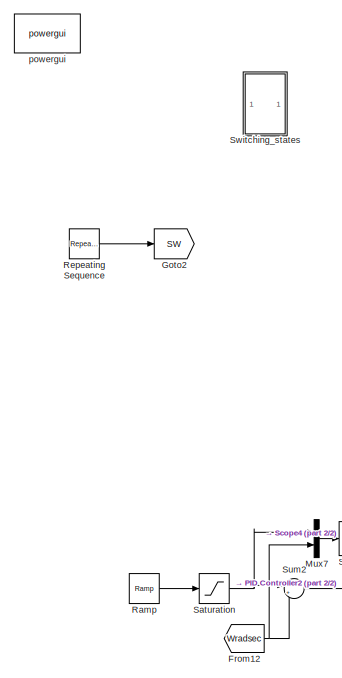
[diagram: root canvas - part 1/2, left side, full height]
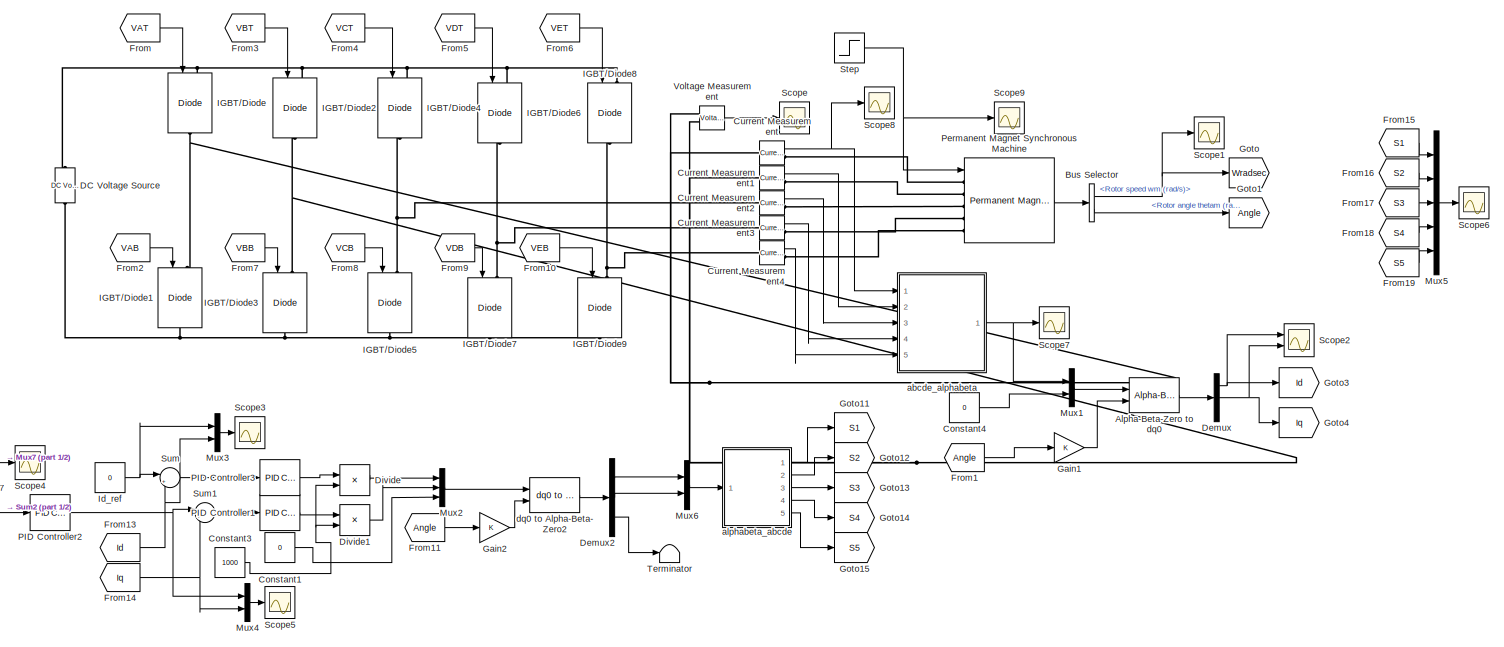
[diagram: root canvas - part 2/2, most of the canvas]
MODEL slx_a9681ad909bc
KIND model
CONFIG AbsTol = auto
CONFIG FixedStep = 0.0000001
CONFIG MaxStep = 0.000001
CONFIG MinStep = 0.0000001
CONFIG RelTol = 1e-3
CONFIG SampleTimeConstraint = Unconstrained
CONFIG Solver = ode3
CONFIG SolverMode = Auto
CONFIG SolverName = ode3
CONFIG StartTime = 0.0
CONFIG StopTime = 0.2
BLOCK [Reference] Alpha-Beta-Zero to dq0  REF=powerlib_meascontrol/Transformations/Alpha-Beta-Zero
to dq0
  Alignment = Aligned with phase A axis
  Ports = [2, 1]
  SourceBlock = powerlib_meascontrol/Transformations/Alpha-Beta-Zero\nto dq0
  SourceType = Alpha-Beta-Zero to dq0 Transformation
BLOCK [BusSelector] Bus Selector
  OutputSignals = Rotor speed wm (rad/s),Rotor angle thetam (rad)
  Ports = [1, 2]
BLOCK [Constant] Constant1
  Value = 0
BLOCK [Constant] Constant3
  Value = 1000
BLOCK [Constant] Constant4
  Value = 0
BLOCK [Reference] Current Measurement  REF=powerlib/Measurements/Current Measurement
  OutputType = Complex
  PSBequivalent = 0
  PhasorSimulation = off
  Ports = [0, 1, 0, 0, 0, 1, 1]
  SourceBlock = powerlib/Measurements/Current Measurement
  SourceType = Current Measurement
  UserDataPersistent = on
BLOCK [Reference] Current Measurement1  REF=powerlib/Measurements/Current Measurement
  OutputType = Complex
  PSBequivalent = 0
  PhasorSimulation = off
  Ports = [0, 1, 0, 0, 0, 1, 1]
  SourceBlock = powerlib/Measurements/Current Measurement
  SourceType = Current Measurement
  UserDataPersistent = on
BLOCK [Reference] Current Measurement2  REF=powerlib/Measurements/Current Measurement
  OutputType = Complex
  PSBequivalent = 0
  PhasorSimulation = off
  Ports = [0, 1, 0, 0, 0, 1, 1]
  SourceBlock = powerlib/Measurements/Current Measurement
  SourceType = Current Measurement
  UserDataPersistent = on
BLOCK [Reference] Current Measurement3  REF=powerlib/Measurements/Current Measurement
  OutputType = Complex
  PSBequivalent = 0
  PhasorSimulation = off
  Ports = [0, 1, 0, 0, 0, 1, 1]
  SourceBlock = powerlib/Measurements/Current Measurement
  SourceType = Current Measurement
  UserDataPersistent = on
BLOCK [Reference] Current Measurement4  REF=powerlib/Measurements/Current Measurement
  OutputType = Complex
  PSBequivalent = 0
  PhasorSimulation = off
  Ports = [0, 1, 0, 0, 0, 1, 1]
  SourceBlock = powerlib/Measurements/Current Measurement
  SourceType = Current Measurement
  UserDataPersistent = on
BLOCK [Reference] DC Voltage Source  REF=powerlib/Electrical
Sources/DC Voltage Source
  Amplitude = 1000
  Measurements = None
  Ports = [0, 0, 0, 0, 0, 1, 1]
  SourceBlock = powerlib/Electrical\nSources/DC Voltage Source
  SourceType = DC Voltage Source
BLOCK [Demux] Demux
  DisplayOption = bar
  Outputs = 3
  Ports = [1, 3]
BLOCK [Demux] Demux2
  DisplayOption = bar
  Outputs = 3
  Ports = [1, 3]
BLOCK [Product] Divide
  InputSameDT = off
  Inputs = */
  OutDataTypeStr = Inherit: Inherit via internal rule
  Ports = [2, 1]
  RndMeth = Floor
  SaturateOnIntegerOverflow = off
BLOCK [Product] Divide1
  InputSameDT = off
  Inputs = */
  OutDataTypeStr = Inherit: Inherit via internal rule
  Ports = [2, 1]
  RndMeth = Floor
  SaturateOnIntegerOverflow = off
BLOCK [From] From
  GotoTag = VAT
  TagVisibility = global
BLOCK [From] From1
  GotoTag = Angle
BLOCK [From] From10
  GotoTag = VEB
  TagVisibility = global
BLOCK [From] From11
  GotoTag = Angle
BLOCK [From] From12
  GotoTag = Wradsec
  TagVisibility = global
BLOCK [From] From13
  GotoTag = Id
BLOCK [From] From14
  GotoTag = Iq
BLOCK [From] From15
  GotoTag = S1
  TagVisibility = global
BLOCK [From] From16
  GotoTag = S2
  TagVisibility = global
BLOCK [From] From17
  GotoTag = S3
  TagVisibility = global
BLOCK [From] From18
  GotoTag = S4
  TagVisibility = global
BLOCK [From] From19
  GotoTag = S5
  TagVisibility = global
BLOCK [From] From2
  GotoTag = VAB
  TagVisibility = global
BLOCK [From] From3
  GotoTag = VBT
  TagVisibility = global
BLOCK [From] From4
  GotoTag = VCT
  TagVisibility = global
BLOCK [From] From5
  GotoTag = VDT
  TagVisibility = global
BLOCK [From] From6
  GotoTag = VET
  TagVisibility = global
BLOCK [From] From7
  GotoTag = VBB
  TagVisibility = global
BLOCK [From] From8
  GotoTag = VCB
  TagVisibility = global
BLOCK [From] From9
  GotoTag = VDB
  TagVisibility = global
BLOCK [Gain] Gain1
  OutDataTypeStr = Inherit: Inherit via internal rule
  ParamDataTypeStr = Inherit: Inherit via internal rule
  SaturateOnIntegerOverflow = off
BLOCK [Gain] Gain2
  OutDataTypeStr = Inherit: Inherit via internal rule
  ParamDataTypeStr = Inherit: Inherit via internal rule
  SaturateOnIntegerOverflow = off
BLOCK [Goto] Goto
  GotoTag = Wradsec
  TagVisibility = global
BLOCK [Goto] Goto1
  GotoTag = Angle
BLOCK [Goto] Goto11
  GotoTag = S1
  TagVisibility = global
BLOCK [Goto] Goto12
  GotoTag = S2
  TagVisibility = global
BLOCK [Goto] Goto13
  GotoTag = S3
  TagVisibility = global
BLOCK [Goto] Goto14
  GotoTag = S4
  TagVisibility = global
BLOCK [Goto] Goto15
  GotoTag = S5
  TagVisibility = global
BLOCK [Goto] Goto2
  GotoTag = SW
  TagVisibility = global
BLOCK [Goto] Goto3
  GotoTag = Id
BLOCK [Goto] Goto4
  GotoTag = Iq
BLOCK [Reference] IGBT//Diode  REF=powerlib/Power
Electronics/IGBT//Diode
  Cs = inf
  Measurements = off
  Ports = [1, 0, 0, 0, 0, 1, 1]
  Ron = 1e-3
  Rs = 1e5
  SourceBlock = powerlib/Power\nElectronics/IGBT//Diode
  SourceType = IGBT/Diode
BLOCK [Reference] IGBT//Diode1  REF=powerlib/Power
Electronics/IGBT//Diode
  Cs = inf
  Measurements = off
  Ports = [1, 0, 0, 0, 0, 1, 1]
  Ron = 1e-3
  Rs = 1e5
  SourceBlock = powerlib/Power\nElectronics/IGBT//Diode
  SourceType = IGBT/Diode
BLOCK [Reference] IGBT//Diode2  REF=powerlib/Power
Electronics/IGBT//Diode
  Cs = inf
  Measurements = off
  Ports = [1, 0, 0, 0, 0, 1, 1]
  Ron = 1e-3
  Rs = 1e5
  SourceBlock = powerlib/Power\nElectronics/IGBT//Diode
  SourceType = IGBT/Diode
BLOCK [Reference] IGBT//Diode3  REF=powerlib/Power
Electronics/IGBT//Diode
  Cs = inf
  Measurements = off
  Ports = [1, 0, 0, 0, 0, 1, 1]
  Ron = 1e-3
  Rs = 1e5
  SourceBlock = powerlib/Power\nElectronics/IGBT//Diode
  SourceType = IGBT/Diode
BLOCK [Reference] IGBT//Diode4  REF=powerlib/Power
Electronics/IGBT//Diode
  Cs = inf
  Measurements = off
  Ports = [1, 0, 0, 0, 0, 1, 1]
  Ron = 1e-3
  Rs = 1e5
  SourceBlock = powerlib/Power\nElectronics/IGBT//Diode
  SourceType = IGBT/Diode
BLOCK [Reference] IGBT//Diode5  REF=powerlib/Power
Electronics/IGBT//Diode
  Cs = inf
  Measurements = off
  Ports = [1, 0, 0, 0, 0, 1, 1]
  Ron = 1e-3
  Rs = 1e5
  SourceBlock = powerlib/Power\nElectronics/IGBT//Diode
  SourceType = IGBT/Diode
BLOCK [Reference] IGBT//Diode6  REF=powerlib/Power
Electronics/IGBT//Diode
  Cs = inf
  Measurements = off
  Ports = [1, 0, 0, 0, 0, 1, 1]
  Ron = 1e-3
  Rs = 1e5
  SourceBlock = powerlib/Power\nElectronics/IGBT//Diode
  SourceType = IGBT/Diode
BLOCK [Reference] IGBT//Diode7  REF=powerlib/Power
Electronics/IGBT//Diode
  Cs = inf
  Measurements = off
  Ports = [1, 0, 0, 0, 0, 1, 1]
  Ron = 1e-3
  Rs = 1e5
  SourceBlock = powerlib/Power\nElectronics/IGBT//Diode
  SourceType = IGBT/Diode
BLOCK [Reference] IGBT//Diode8  REF=powerlib/Power
Electronics/IGBT//Diode
  Cs = inf
  Measurements = off
  Ports = [1, 0, 0, 0, 0, 1, 1]
  Ron = 1e-3
  Rs = 1e5
  SourceBlock = powerlib/Power\nElectronics/IGBT//Diode
  SourceType = IGBT/Diode
BLOCK [Reference] IGBT//Diode9  REF=powerlib/Power
Electronics/IGBT//Diode
  Cs = inf
  Measurements = off
  Ports = [1, 0, 0, 0, 0, 1, 1]
  Ron = 1e-3
  Rs = 1e5
  SourceBlock = powerlib/Power\nElectronics/IGBT//Diode
  SourceType = IGBT/Diode
BLOCK [Constant] Id_ref
  Value = 0
BLOCK [Mux] Mux1
  DisplayOption = bar
  Inputs = 2
  Ports = [2, 1]
BLOCK [Mux] Mux2
  DisplayOption = bar
  Inputs = 3
  Ports = [3, 1]
BLOCK [Mux] Mux3
  DisplayOption = bar
  Inputs = 2
  Ports = [2, 1]
BLOCK [Mux] Mux4
  DisplayOption = bar
  Inputs = 2
  Ports = [2, 1]
BLOCK [Mux] Mux5
  DisplayOption = bar
  Inputs = 5
  Ports = [5, 1]
BLOCK [Mux] Mux6
  DisplayOption = bar
  Inputs = 2
  Ports = [2, 1]
BLOCK [Mux] Mux7
  DisplayOption = bar
  Inputs = 2
  Ports = [2, 1]
BLOCK [Reference] PID Controller1  REF=simulink/Continuous/PID Controller
  AntiWindupMode = none
  Controller = PI
  ControllerParametersSource = internal
  D = 0
  DGainOutDataTypeStr = Inherit: Inherit via internal rule
  DOutDataTypeStr = Inherit: Inherit via internal rule
  DOutMax = []
  DOutMin = []
  DParamDataTypeStr = Inherit: Inherit via internal rule
  DParamMax = []
  DParamMin = []
  DProdOutDataTypeStr = Inherit: Inherit via internal rule
  DifferentiatorICPrevScaledInput = 0
  DifferentiatorOutDataTypeStr = Inherit: Inherit via internal rule
  DifferentiatorOutMax = []
  DifferentiatorOutMin = []
  ExternalReset = none
  FilterContinuousStateAttributes = ''
  FilterMethod = Forward Euler
  FilterOutDataTypeStr = Inherit: Inherit via internal rule
  FilterOutMax = []
  FilterOutMin = []
  FilterRTWStateStorageClass = Auto
  FilterStateMustResolveToSignalObject = off
  Form = Parallel
  I = 15000
  IGainOutDataTypeStr = Inherit: Inherit via internal rule
  IOutDataTypeStr = Inherit: Inherit via internal rule
  IOutMax = []
  IOutMin = []
  IParamDataTypeStr = Inherit: Inherit via internal rule
  IParamMax = []
  IParamMin = []
  IProdOutDataTypeStr = Inherit: Inherit via internal rule
  IgnoreLimit = off
  InitialConditionForFilter = 0
  InitialConditionForIntegrator = 0
  InitialConditionSource = internal
  IntegratorContinuousStateAttributes = ''
  IntegratorMethod = Forward Euler
  IntegratorOutDataTypeStr = Inherit: Inherit via internal rule
  IntegratorOutMax = []
  IntegratorOutMin = []
  IntegratorRTWStateStorageClass = Auto
  IntegratorStateMustResolveToSignalObject = off
  Kb = 1
  KbOutDataTypeStr = Inherit: Inherit via internal rule
  KbOutMax = []
  KbOutMin = []
  KbParamDataTypeStr = Inherit: Inherit via internal rule
  KbParamMax = []
  KbParamMin = []
  Kt = 1
  KtOutDataTypeStr = Inherit: Inherit via internal rule
  KtOutMax = []
  KtOutMin = []
  KtParamDataTypeStr = Inherit: Inherit via internal rule
  KtParamMax = []
  KtParamMin = []
  LimitOutput = off
  LinearizeAsGain = on
  LockScale = off
  LowerSaturationLimit = -inf
  N = 100
  NGainOutDataTypeStr = Inherit: Inherit via internal rule
  NOutDataTypeStr = Inherit: Inherit via internal rule
  NOutMax = []
  NOutMin = []
  NParamDataTypeStr = Inherit: Inherit via internal rule
  NParamMax = []
  NParamMin = []
  NProdOutDataTypeStr = Inherit: Inherit via internal rule
  P = 40
  PGainOutDataTypeStr = Inherit: Inherit via internal rule
  POutDataTypeStr = Inherit: Inherit via internal rule
  POutMax = []
  POutMin = []
  PParamDataTypeStr = Inherit: Inherit via internal rule
  PParamMax = []
  PParamMin = []
  PProdOutDataTypeStr = Inherit: Inherit via internal rule
  Ports = [1, 1]
  RndMeth = Floor
  SampleTime = -1
  SaturateOnIntegerOverflow = off
  SaturationOutDataTypeStr = Inherit: Same as input
  SaturationOutMax = []
  SaturationOutMin = []
  SourceBlock = simulink/Continuous/PID Controller
  SourceType = PID 1dof
  SumAccumDataTypeStr = Inherit: Inherit via internal rule
  SumDAccumDataTypeStr = Inherit: Inherit via internal rule
  SumDOutDataTypeStr = Inherit: Inherit via internal rule
  SumDOutMax = []
  SumDOutMin = []
  SumI1AccumDataTypeStr = Inherit: Inherit via internal rule
  SumI1OutDataTypeStr = Inherit: Inherit via internal rule
  SumI1OutMax = []
  SumI1OutMin = []
  SumI2AccumDataTypeStr = Inherit: Inherit via internal rule
  SumI2OutDataTypeStr = Inherit: Inherit via internal rule
  SumI2OutMax = []
  SumI2OutMin = []
  SumI3AccumDataTypeStr = Inherit: Inherit via internal rule
  SumI3OutDataTypeStr = Inherit: Inherit via internal rule
  SumI3OutMax = []
  SumI3OutMin = []
  SumOutDataTypeStr = Inherit: Inherit via internal rule
  SumOutMax = []
  SumOutMin = []
  TimeDomain = Continuous-time
  TrackingMode = off
  UpperSaturationLimit = inf
  UseFilter = on
  ZeroCross = on
BLOCK [Reference] PID Controller2  REF=simulink/Continuous/PID Controller
  AntiWindupMode = none
  Controller = PI
  ControllerParametersSource = internal
  D = 0
  DGainOutDataTypeStr = Inherit: Inherit via internal rule
  DOutDataTypeStr = Inherit: Inherit via internal rule
  DOutMax = []
  DOutMin = []
  DParamDataTypeStr = Inherit: Inherit via internal rule
  DParamMax = []
  DParamMin = []
  DProdOutDataTypeStr = Inherit: Inherit via internal rule
  DifferentiatorICPrevScaledInput = 0
  DifferentiatorOutDataTypeStr = Inherit: Inherit via internal rule
  DifferentiatorOutMax = []
  DifferentiatorOutMin = []
  ExternalReset = none
  FilterContinuousStateAttributes = ''
  FilterMethod = Forward Euler
  FilterOutDataTypeStr = Inherit: Inherit via internal rule
  FilterOutMax = []
  FilterOutMin = []
  FilterRTWStateStorageClass = Auto
  FilterStateMustResolveToSignalObject = off
  Form = Parallel
  I = 10000
  IGainOutDataTypeStr = Inherit: Inherit via internal rule
  IOutDataTypeStr = Inherit: Inherit via internal rule
  IOutMax = []
  IOutMin = []
  IParamDataTypeStr = Inherit: Inherit via internal rule
  IParamMax = []
  IParamMin = []
  IProdOutDataTypeStr = Inherit: Inherit via internal rule
  IgnoreLimit = off
  InitialConditionForFilter = 0
  InitialConditionForIntegrator = 0
  InitialConditionSource = internal
  IntegratorContinuousStateAttributes = ''
  IntegratorMethod = Forward Euler
  IntegratorOutDataTypeStr = Inherit: Inherit via internal rule
  IntegratorOutMax = []
  IntegratorOutMin = []
  IntegratorRTWStateStorageClass = Auto
  IntegratorStateMustResolveToSignalObject = off
  Kb = 1
  KbOutDataTypeStr = Inherit: Inherit via internal rule
  KbOutMax = []
  KbOutMin = []
  KbParamDataTypeStr = Inherit: Inherit via internal rule
  KbParamMax = []
  KbParamMin = []
  Kt = 1
  KtOutDataTypeStr = Inherit: Inherit via internal rule
  KtOutMax = []
  KtOutMin = []
  KtParamDataTypeStr = Inherit: Inherit via internal rule
  KtParamMax = []
  KtParamMin = []
  LimitOutput = off
  LinearizeAsGain = on
  LockScale = off
  LowerSaturationLimit = -inf
  N = 100
  NGainOutDataTypeStr = Inherit: Inherit via internal rule
  NOutDataTypeStr = Inherit: Inherit via internal rule
  NOutMax = []
  NOutMin = []
  NParamDataTypeStr = Inherit: Inherit via internal rule
  NParamMax = []
  NParamMin = []
  NProdOutDataTypeStr = Inherit: Inherit via internal rule
  P = 60
  PGainOutDataTypeStr = Inherit: Inherit via internal rule
  POutDataTypeStr = Inherit: Inherit via internal rule
  POutMax = []
  POutMin = []
  PParamDataTypeStr = Inherit: Inherit via internal rule
  PParamMax = []
  PParamMin = []
  PProdOutDataTypeStr = Inherit: Inherit via internal rule
  Ports = [1, 1]
  RndMeth = Floor
  SampleTime = -1
  SaturateOnIntegerOverflow = off
  SaturationOutDataTypeStr = Inherit: Same as input
  SaturationOutMax = []
  SaturationOutMin = []
  SourceBlock = simulink/Continuous/PID Controller
  SourceType = PID 1dof
  SumAccumDataTypeStr = Inherit: Inherit via internal rule
  SumDAccumDataTypeStr = Inherit: Inherit via internal rule
  SumDOutDataTypeStr = Inherit: Inherit via internal rule
  SumDOutMax = []
  SumDOutMin = []
  SumI1AccumDataTypeStr = Inherit: Inherit via internal rule
  SumI1OutDataTypeStr = Inherit: Inherit via internal rule
  SumI1OutMax = []
  SumI1OutMin = []
  SumI2AccumDataTypeStr = Inherit: Inherit via internal rule
  SumI2OutDataTypeStr = Inherit: Inherit via internal rule
  SumI2OutMax = []
  SumI2OutMin = []
  SumI3AccumDataTypeStr = Inherit: Inherit via internal rule
  SumI3OutDataTypeStr = Inherit: Inherit via internal rule
  SumI3OutMax = []
  SumI3OutMin = []
  SumOutDataTypeStr = Inherit: Inherit via internal rule
  SumOutMax = []
  SumOutMin = []
  TimeDomain = Continuous-time
  TrackingMode = off
  UpperSaturationLimit = inf
  UseFilter = on
  ZeroCross = on
BLOCK [Reference] PID Controller3  REF=simulink/Continuous/PID Controller
  AntiWindupMode = none
  Controller = PI
  ControllerParametersSource = internal
  D = 0
  DGainOutDataTypeStr = Inherit: Inherit via internal rule
  DOutDataTypeStr = Inherit: Inherit via internal rule
  DOutMax = []
  DOutMin = []
  DParamDataTypeStr = Inherit: Inherit via internal rule
  DParamMax = []
  DParamMin = []
  DProdOutDataTypeStr = Inherit: Inherit via internal rule
  DifferentiatorICPrevScaledInput = 0
  DifferentiatorOutDataTypeStr = Inherit: Inherit via internal rule
  DifferentiatorOutMax = []
  DifferentiatorOutMin = []
  ExternalReset = none
  FilterContinuousStateAttributes = ''
  FilterMethod = Forward Euler
  FilterOutDataTypeStr = Inherit: Inherit via internal rule
  FilterOutMax = []
  FilterOutMin = []
  FilterRTWStateStorageClass = Auto
  FilterStateMustResolveToSignalObject = off
  Form = Parallel
  I = 15000
  IGainOutDataTypeStr = Inherit: Inherit via internal rule
  IOutDataTypeStr = Inherit: Inherit via internal rule
  IOutMax = []
  IOutMin = []
  IParamDataTypeStr = Inherit: Inherit via internal rule
  IParamMax = []
  IParamMin = []
  IProdOutDataTypeStr = Inherit: Inherit via internal rule
  IgnoreLimit = off
  InitialConditionForFilter = 0
  InitialConditionForIntegrator = 0
  InitialConditionSource = internal
  IntegratorContinuousStateAttributes = ''
  IntegratorMethod = Forward Euler
  IntegratorOutDataTypeStr = Inherit: Inherit via internal rule
  IntegratorOutMax = []
  IntegratorOutMin = []
  IntegratorRTWStateStorageClass = Auto
  IntegratorStateMustResolveToSignalObject = off
  Kb = 1
  KbOutDataTypeStr = Inherit: Inherit via internal rule
  KbOutMax = []
  KbOutMin = []
  KbParamDataTypeStr = Inherit: Inherit via internal rule
  KbParamMax = []
  KbParamMin = []
  Kt = 1
  KtOutDataTypeStr = Inherit: Inherit via internal rule
  KtOutMax = []
  KtOutMin = []
  KtParamDataTypeStr = Inherit: Inherit via internal rule
  KtParamMax = []
  KtParamMin = []
  LimitOutput = off
  LinearizeAsGain = on
  LockScale = off
  LowerSaturationLimit = -inf
  N = 100
  NGainOutDataTypeStr = Inherit: Inherit via internal rule
  NOutDataTypeStr = Inherit: Inherit via internal rule
  NOutMax = []
  NOutMin = []
  NParamDataTypeStr = Inherit: Inherit via internal rule
  NParamMax = []
  NParamMin = []
  NProdOutDataTypeStr = Inherit: Inherit via internal rule
  P = 40
  PGainOutDataTypeStr = Inherit: Inherit via internal rule
  POutDataTypeStr = Inherit: Inherit via internal rule
  POutMax = []
  POutMin = []
  PParamDataTypeStr = Inherit: Inherit via internal rule
  PParamMax = []
  PParamMin = []
  PProdOutDataTypeStr = Inherit: Inherit via internal rule
  Ports = [1, 1]
  RndMeth = Floor
  SampleTime = -1
  SaturateOnIntegerOverflow = off
  SaturationOutDataTypeStr = Inherit: Same as input
  SaturationOutMax = []
  SaturationOutMin = []
  SourceBlock = simulink/Continuous/PID Controller
  SourceType = PID 1dof
  SumAccumDataTypeStr = Inherit: Inherit via internal rule
  SumDAccumDataTypeStr = Inherit: Inherit via internal rule
  SumDOutDataTypeStr = Inherit: Inherit via internal rule
  SumDOutMax = []
  SumDOutMin = []
  SumI1AccumDataTypeStr = Inherit: Inherit via internal rule
  SumI1OutDataTypeStr = Inherit: Inherit via internal rule
  SumI1OutMax = []
  SumI1OutMin = []
  SumI2AccumDataTypeStr = Inherit: Inherit via internal rule
  SumI2OutDataTypeStr = Inherit: Inherit via internal rule
  SumI2OutMax = []
  SumI2OutMin = []
  SumI3AccumDataTypeStr = Inherit: Inherit via internal rule
  SumI3OutDataTypeStr = Inherit: Inherit via internal rule
  SumI3OutMax = []
  SumI3OutMin = []
  SumOutDataTypeStr = Inherit: Inherit via internal rule
  SumOutMax = []
  SumOutMin = []
  TimeDomain = Continuous-time
  TrackingMode = off
  UpperSaturationLimit = inf
  UseFilter = on
  ZeroCross = on
BLOCK [Reference] Permanent Magnet Synchronous Machine  REF=powerlib/Machines/Permanent Magnet
Synchronous Machine
  Flat = 120
  Flux = 0.1194
  FluxDistribution = Sinusoidal
  Inductance = 8.5e-3
  InitialConditions = [0,0, 0,0]
  InitialConditions5ph = [0 0 0 0 0 0]
  La = 0.005
  MachineConstant = Flux linkage established by magnets (V.s)
  MeasurementBus = off
  Mechanical = [0.0027 0.0004924 1 0]
  MechanicalLoad = Torque Tm
  NbPhases = 5
  PolePairs = 4
  Ports = [1, 1, 0, 0, 0, 5]
  PresetModel = No
  RefAngle = Aligned with phase A axis (original Park)
  Resistance = 2.0
  RotorType = Round
  ShowDetailedParameters = on
  SourceBlock = powerlib/Machines/Permanent Magnet\nSynchronous Machine
  SourceType = Permanent Magnet Synchronous Machine
  TorqueCst = 0.2985
  TsBlock = -1
  TsPowergui = 0
  VoltageCst = 14.6988
  dqInductances = [8.5e-3,8.5e-3]
BLOCK [Reference] Ramp  REF=simulink/Sources/Ramp
  Ports = [0, 1]
  SourceBlock = simulink/Sources/Ramp
  SourceType = Ramp
  VectorParams1D = on
  X0 = 0
  slope = 10000
  start = 0
BLOCK [Reference] Repeating Sequence  REF=simulink/Sources/Repeating
Sequence
  Ports = [0, 1]
  SourceBlock = simulink/Sources/Repeating\nSequence
  SourceType = Repeating table
  rep_seq_t = [0 0.25 0.5 0.75 1.0]/10000
  rep_seq_y = [0 1 0 -1 0]
BLOCK [Saturate] Saturation
  InputPortMap = u0
  LowerLimit = -300
  Ports = [1, 1]
  UpperLimit = 300
BLOCK [Scope] Scope
  DataFormat = StructureWithTime
  Floating = off
  LimitDataPoints = off
  NumInputPorts = 1
  Ports = [1]
  SaveToWorkspace = on
  YMax = 110
  YMin = -100
  ZoomMode = xonly
BLOCK [Scope] Scope1
  Floating = off
  LimitDataPoints = off
  NumInputPorts = 1
  Ports = [1]
  SaveName = ScopeData9
  YMax = 1.26218e-29
  YMin = -9e-14
  ZoomMode = xonly
BLOCK [Scope] Scope2
  Floating = off
  LimitDataPoints = off
  NumInputPorts = 2
  Ports = [2]
  SaveName = ScopeData12
  YMax = 10.1~7.5e-15
  YMin = 9.89~-2e-15
  ZoomMode = xonly
BLOCK [Scope] Scope3
  Floating = off
  LimitDataPoints = off
  NumInputPorts = 1
  Ports = [1]
  SaveName = ScopeData10
  TimeRange = 0.2
  YMax = 0.025
  YMin = -0.0075
  ZoomMode = yonly
BLOCK [Scope] Scope4
  Floating = off
  LimitDataPoints = off
  NumInputPorts = 1
  Ports = [1]
  SaveName = ScopeData13
  TimeRange = 0.2
  YMax = 400
  YMin = -10
  ZoomMode = yonly
BLOCK [Scope] Scope5
  Floating = off
  LimitDataPoints = off
  NumInputPorts = 1
  Ports = [1]
  SaveName = ScopeData11
  YMax = -16.23
  YMin = -16.31
  ZoomMode = yonly
BLOCK [Scope] Scope6
  Floating = off
  LimitDataPoints = off
  NumInputPorts = 1
  Ports = [1]
  SaveName = ScopeData6
  YMax = 0.25
  YMin = -0.275
  ZoomMode = yonly
BLOCK [Scope] Scope7
  Floating = off
  LimitDataPoints = off
  NumInputPorts = 1
  Ports = [1]
  SaveName = ScopeData7
  YMax = 17.5
  YMin = -17.5
  ZoomMode = yonly
BLOCK [Scope] Scope8
  Floating = off
  LimitDataPoints = off
  NumInputPorts = 1
  Ports = [1]
  SaveName = ScopeData8
  YMax = 35
  YMin = -35
  ZoomMode = yonly
BLOCK [Scope] Scope9
  Floating = off
  LimitDataPoints = off
  NumInputPorts = 1
  Ports = [1]
  SaveName = ScopeData14
  YMax = 0.25
  YMin = -0.275
  ZoomMode = xonly
BLOCK [Step] Step
  After = -5
  Before = 10
  SampleTime = 0
  Time = 0.1
BLOCK [Sum] Sum
  IconShape = round
  InputSameDT = off
  Inputs = |+-
  OutDataTypeStr = Inherit: Inherit via internal rule
  Ports = [2, 1]
  SaturateOnIntegerOverflow = off
BLOCK [Sum] Sum1
  IconShape = round
  InputSameDT = off
  Inputs = |+-
  OutDataTypeStr = Inherit: Inherit via internal rule
  Ports = [2, 1]
  SaturateOnIntegerOverflow = off
BLOCK [Sum] Sum2
  IconShape = round
  InputSameDT = off
  Inputs = |+-
  OutDataTypeStr = Inherit: Inherit via internal rule
  Ports = [2, 1]
  SaturateOnIntegerOverflow = off
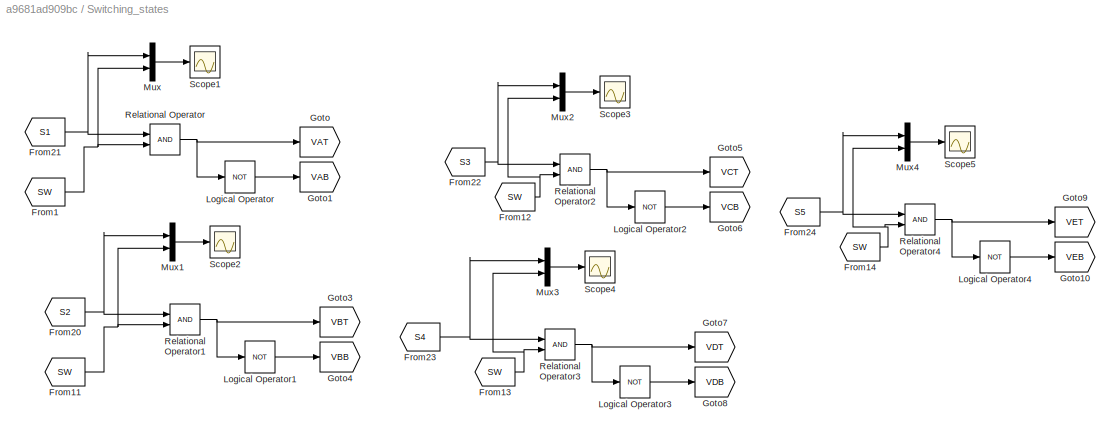
BLOCK [SubSystem] Switching_states
  Ports = []
  RequestExecContextInheritance = off
BLOCK [From] Switching_states/From1
  GotoTag = SW
  TagVisibility = global
BLOCK [From] Switching_states/From11
  GotoTag = SW
  TagVisibility = global
BLOCK [From] Switching_states/From12
  GotoTag = SW
  TagVisibility = global
BLOCK [From] Switching_states/From13
  GotoTag = SW
  TagVisibility = global
BLOCK [From] Switching_states/From14
  GotoTag = SW
  TagVisibility = global
BLOCK [From] Switching_states/From20
  GotoTag = S2
  TagVisibility = global
BLOCK [From] Switching_states/From21
  GotoTag = S1
  TagVisibility = global
BLOCK [From] Switching_states/From22
  GotoTag = S3
  TagVisibility = global
BLOCK [From] Switching_states/From23
  GotoTag = S4
  TagVisibility = global
BLOCK [From] Switching_states/From24
  GotoTag = S5
  TagVisibility = global
BLOCK [Goto] Switching_states/Goto
  GotoTag = VAT
  TagVisibility = global
BLOCK [Goto] Switching_states/Goto1
  GotoTag = VAB
  TagVisibility = global
BLOCK [Goto] Switching_states/Goto10
  GotoTag = VEB
  TagVisibility = global
BLOCK [Goto] Switching_states/Goto3
  GotoTag = VBT
  TagVisibility = global
BLOCK [Goto] Switching_states/Goto4
  GotoTag = VBB
  TagVisibility = global
BLOCK [Goto] Switching_states/Goto5
  GotoTag = VCT
  TagVisibility = global
BLOCK [Goto] Switching_states/Goto6
  GotoTag = VCB
  TagVisibility = global
BLOCK [Goto] Switching_states/Goto7
  GotoTag = VDT
  TagVisibility = global
BLOCK [Goto] Switching_states/Goto8
  GotoTag = VDB
  TagVisibility = global
BLOCK [Goto] Switching_states/Goto9
  GotoTag = VET
  TagVisibility = global
BLOCK [Logic] Switching_states/Logical Operator
  AllPortsSameDT = off
  Inputs = 1
  Operator = NOT
  OutDataTypeStr = boolean
  Ports = [1, 1]
BLOCK [Logic] Switching_states/Logical Operator1
  AllPortsSameDT = off
  Inputs = 1
  Operator = NOT
  OutDataTypeStr = boolean
  Ports = [1, 1]
BLOCK [Logic] Switching_states/Logical Operator2
  AllPortsSameDT = off
  Inputs = 1
  Operator = NOT
  OutDataTypeStr = boolean
  Ports = [1, 1]
BLOCK [Logic] Switching_states/Logical Operator3
  AllPortsSameDT = off
  Inputs = 1
  Operator = NOT
  OutDataTypeStr = boolean
  Ports = [1, 1]
BLOCK [Logic] Switching_states/Logical Operator4
  AllPortsSameDT = off
  Inputs = 1
  Operator = NOT
  OutDataTypeStr = boolean
  Ports = [1, 1]
BLOCK [Mux] Switching_states/Mux
  DisplayOption = bar
  Inputs = 2
  Ports = [2, 1]
BLOCK [Mux] Switching_states/Mux1
  DisplayOption = bar
  Inputs = 2
  Ports = [2, 1]
BLOCK [Mux] Switching_states/Mux2
  DisplayOption = bar
  Inputs = 2
  Ports = [2, 1]
BLOCK [Mux] Switching_states/Mux3
  DisplayOption = bar
  Inputs = 2
  Ports = [2, 1]
BLOCK [Mux] Switching_states/Mux4
  DisplayOption = bar
  Inputs = 2
  Ports = [2, 1]
BLOCK [RelationalOperator] Switching_states/Relational Operator
  InputSameDT = off
  OutDataTypeStr = boolean
  Ports = [2, 1]
BLOCK [RelationalOperator] Switching_states/Relational Operator1
  InputSameDT = off
  OutDataTypeStr = boolean
  Ports = [2, 1]
BLOCK [RelationalOperator] Switching_states/Relational Operator2
  InputSameDT = off
  OutDataTypeStr = boolean
  Ports = [2, 1]
BLOCK [RelationalOperator] Switching_states/Relational Operator3
  InputSameDT = off
  OutDataTypeStr = boolean
  Ports = [2, 1]
BLOCK [RelationalOperator] Switching_states/Relational Operator4
  InputSameDT = off
  OutDataTypeStr = boolean
  Ports = [2, 1]
BLOCK [Scope] Switching_states/Scope1
  Floating = off
  LimitDataPoints = off
  NumInputPorts = 1
  Ports = [1]
  SaveName = ScopeData1
  YMax = 1
  YMin = -1
  ZoomMode = xonly
BLOCK [Scope] Switching_states/Scope2
  Floating = off
  LimitDataPoints = off
  NumInputPorts = 1
  Ports = [1]
  SaveName = ScopeData2
  YMax = 1
  YMin = -1
  ZoomMode = xonly
BLOCK [Scope] Switching_states/Scope3
  Floating = off
  LimitDataPoints = off
  NumInputPorts = 1
  Ports = [1]
  SaveName = ScopeData3
  YMax = 1
  YMin = -1
  ZoomMode = xonly
BLOCK [Scope] Switching_states/Scope4
  Floating = off
  LimitDataPoints = off
  NumInputPorts = 1
  Ports = [1]
  SaveName = ScopeData4
  YMax = 1
  YMin = -1
  ZoomMode = xonly
BLOCK [Scope] Switching_states/Scope5
  Floating = off
  LimitDataPoints = off
  NumInputPorts = 1
  Ports = [1]
  SaveName = ScopeData5
  YMax = 1
  YMin = -1
  ZoomMode = xonly
BLOCK [Terminator] Terminator
BLOCK [Reference] Voltage Measurement  REF=powerlib/Measurements/Voltage Measurement
  OutputType = Complex
  PSBequivalent = 0
  PhasorSimulation = off
  Ports = [0, 1, 0, 0, 0, 2]
  SourceBlock = powerlib/Measurements/Voltage Measurement
  SourceType = Voltage Measurement
  UserDataPersistent = on
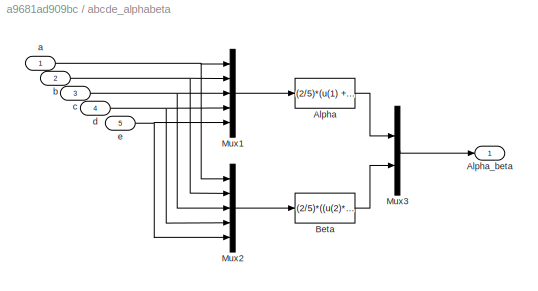
BLOCK [SubSystem] abcde_alphabeta
  Ports = [5, 1]
  RequestExecContextInheritance = off
BLOCK [Fcn] abcde_alphabeta/Alpha
  Expr = (2/5)*(u(1) + (u(2)*cos(2*pi/5)) + (u(3)*cos(4*pi/5)) + (u(4)*cos(4*pi/5)) + (u(5)*cos(2*pi/5)))
BLOCK [Outport] abcde_alphabeta/Alpha_beta
  IconDisplay = Port number
BLOCK [Fcn] abcde_alphabeta/Beta
  Expr = (2/5)*((u(2)*cos(pi/10)) + (u(3)*cos(3*pi/10)) - (u(4)*cos(3*pi/10)) - (u(5)*cos(pi/10)))
BLOCK [Mux] abcde_alphabeta/Mux1
  DisplayOption = bar
  Inputs = 5
  Ports = [5, 1]
BLOCK [Mux] abcde_alphabeta/Mux2
  DisplayOption = bar
  Inputs = 5
  Ports = [5, 1]
BLOCK [Mux] abcde_alphabeta/Mux3
  DisplayOption = bar
  Inputs = 2
  Ports = [2, 1]
BLOCK [Inport] abcde_alphabeta/a
  IconDisplay = Port number
BLOCK [Inport] abcde_alphabeta/b
  IconDisplay = Port number
  Port = 2
BLOCK [Inport] abcde_alphabeta/c
  IconDisplay = Port number
  Port = 3
BLOCK [Inport] abcde_alphabeta/d
  IconDisplay = Port number
  Port = 4
BLOCK [Inport] abcde_alphabeta/e
  IconDisplay = Port number
  Port = 5
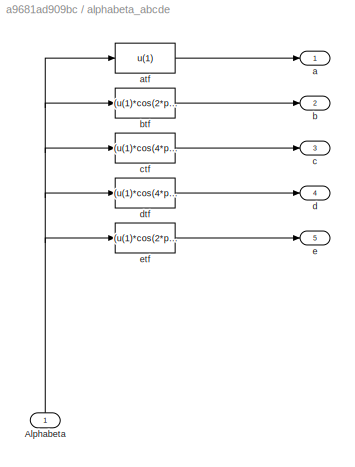
BLOCK [SubSystem] alphabeta_abcde
  Ports = [1, 5]
  RequestExecContextInheritance = off
BLOCK [Inport] alphabeta_abcde/Alphabeta
  IconDisplay = Port number
BLOCK [Outport] alphabeta_abcde/a
  IconDisplay = Port number
BLOCK [Fcn] alphabeta_abcde/atf
  Expr = u(1)
BLOCK [Outport] alphabeta_abcde/b
  IconDisplay = Port number
  Port = 2
BLOCK [Fcn] alphabeta_abcde/btf
  Expr = (u(1)*cos(2*pi/5)) + (u(2)*cos(pi/10))
BLOCK [Outport] alphabeta_abcde/c
  IconDisplay = Port number
  Port = 3
BLOCK [Fcn] alphabeta_abcde/ctf
  Expr = (u(1)*cos(4*pi/5)) + (u(2)*cos(3*pi/10))
BLOCK [Outport] alphabeta_abcde/d
  IconDisplay = Port number
  Port = 4
BLOCK [Fcn] alphabeta_abcde/dtf
  Expr = (u(1)*cos(4*pi/5)) - (u(2)*cos(3*pi/10))
BLOCK [Outport] alphabeta_abcde/e
  IconDisplay = Port number
  Port = 5
BLOCK [Fcn] alphabeta_abcde/etf
  Expr = (u(1)*cos(2*pi/5)) - (u(2)*cos(pi/10))
BLOCK [Reference] dq0 to Alpha-Beta-Zero2  REF=powerlib_meascontrol/Transformations/dq0 to
Alpha-Beta-Zero
  Alignment = Aligned with phase A axis
  Ports = [2, 1]
  SourceBlock = powerlib_meascontrol/Transformations/dq0 to\nAlpha-Beta-Zero
  SourceType = dq0 to Alpha-Beta-Zero Transformation
BLOCK [Reference] powergui  REF=powerlib/powergui
  DisableRonSwitches = off
  DisableSnubberDevices = off
  DisableVfSwitches = off
  DisplayEquations = off
  DisplayStyle = 1
  EnableUseOfTLC = off
  ErrMax = 1e-4
  Frange = [0:2:500]
  FreqAxis = off
  FunctionMessages = off
  HookPort = off
  Interpol = off
  Iterations = 50
  MaxFrequency = 1000
  Pbase = 100e6
  Ports = []
  Priority = 1
  ResistiveCurrentMeasurement = off
  RestoreLinks = warning
  RmsSteady = 1
  SPID = off
  SampleTime = 50e-6
  ShowGrid = off
  SolverType = Tustin/Backward Euler (TBE)
  SourceBlock = powerlib/powergui
  SourceType = PSB option menu block
  StartTime = 0.0
  SwTol = 0
  Ts = 100
  UnitsV = kV
  UnitsW = MW
  UserDataPersistent = on
  Xlog = on
  Ylog = off
  ZoomFFT = off
  buscounter = 0
  cycles = 10
  display = off
  echomessages = off
  frequency = 60
  frequencyindice = 0
  frequencyindicesteady = 1
  fundamental = 50
  methode = off
  save = off
  structure = ScopeData
  variable = ZData
  x0status = blocks
LINE Alpha-Beta-Zero to dq0:1 -> Demux:1
NET Bus Selector:1 -> Goto:1, Scope1:1
LINE Bus Selector:2 -> Goto1:1
LINE Constant1:1 -> Mux2:3
NET Constant3:1 -> Divide1:2, Divide:2
LINE Constant4:1 -> Mux1:2
LINE Current Measurement1:1 -> abcde_alphabeta:2
LINE Current Measurement2:1 -> abcde_alphabeta:3
LINE Current Measurement3:1 -> abcde_alphabeta:4
LINE Current Measurement4:1 -> abcde_alphabeta:5
NET Current Measurement:1 -> Scope8:1, abcde_alphabeta:1
LINE Demux2:1 -> Mux6:1
LINE Demux2:2 -> Mux6:2
LINE Demux2:3 -> Terminator:1
NET Demux:1 -> Goto3:1, Scope2:1
NET Demux:2 -> Goto4:1, Scope2:2
LINE Divide1:1 -> Mux2:2
LINE Divide:1 -> Mux2:1
LINE From10:1 -> IGBT//Diode9:1
LINE From11:1 -> Gain2:1
NET From12:1 -> Mux7:2, Sum2:2
NET From13:1 -> Mux3:2, Sum:2
NET From14:1 -> Mux4:2, Sum1:2
LINE From15:1 -> Mux5:1
LINE From16:1 -> Mux5:2
LINE From17:1 -> Mux5:3
LINE From18:1 -> Mux5:4
LINE From19:1 -> Mux5:5
LINE From1:1 -> Gain1:1
LINE From2:1 -> IGBT//Diode1:1
LINE From3:1 -> IGBT//Diode2:1
LINE From4:1 -> IGBT//Diode4:1
LINE From5:1 -> IGBT//Diode6:1
LINE From6:1 -> IGBT//Diode8:1
LINE From7:1 -> IGBT//Diode3:1
LINE From8:1 -> IGBT//Diode5:1
LINE From9:1 -> IGBT//Diode7:1
LINE From:1 -> IGBT//Diode:1
LINE Gain1:1 -> Alpha-Beta-Zero to dq0:2
LINE Gain2:1 -> dq0 to Alpha-Beta-Zero2:2
NET Id_ref:1 -> Mux3:1, Sum:1
LINE Mux1:1 -> Alpha-Beta-Zero to dq0:1
LINE Mux2:1 -> dq0 to Alpha-Beta-Zero2:1
LINE Mux3:1 -> Scope3:1
LINE Mux4:1 -> Scope5:1
LINE Mux5:1 -> Scope6:1
LINE Mux6:1 -> alphabeta_abcde:1
LINE Mux7:1 -> Scope4:1
LINE PID Controller1:1 -> Divide1:1
NET PID Controller2:1 -> Mux4:1, Sum1:1
LINE PID Controller3:1 -> Divide:1
LINE Permanent Magnet Synchronous Machine:1 -> Bus Selector:1
LINE Ramp:1 -> Saturation:1
LINE Repeating Sequence:1 -> Goto2:1
NET Saturation:1 -> Mux7:1, Sum2:1
NET Step:1 -> Permanent Magnet Synchronous Machine:1, Scope9:1
LINE Sum1:1 -> PID Controller1:1
LINE Sum2:1 -> PID Controller2:1
LINE Sum:1 -> PID Controller3:1
NET Switching_states/From11:1 -> Switching_states/Mux1:2, Switching_states/Relational Operator1:2
NET Switching_states/From12:1 -> Switching_states/Mux2:2, Switching_states/Relational Operator2:2
NET Switching_states/From13:1 -> Switching_states/Mux3:2, Switching_states/Relational Operator3:2
NET Switching_states/From14:1 -> Switching_states/Mux4:2, Switching_states/Relational Operator4:2
NET Switching_states/From1:1 -> Switching_states/Mux:2, Switching_states/Relational Operator:2
NET Switching_states/From20:1 -> Switching_states/Mux1:1, Switching_states/Relational Operator1:1
NET Switching_states/From21:1 -> Switching_states/Mux:1, Switching_states/Relational Operator:1
NET Switching_states/From22:1 -> Switching_states/Mux2:1, Switching_states/Relational Operator2:1
NET Switching_states/From23:1 -> Switching_states/Mux3:1, Switching_states/Relational Operator3:1
NET Switching_states/From24:1 -> Switching_states/Mux4:1, Switching_states/Relational Operator4:1
LINE Switching_states/Logical Operator1:1 -> Switching_states/Goto4:1
LINE Switching_states/Logical Operator2:1 -> Switching_states/Goto6:1
LINE Switching_states/Logical Operator3:1 -> Switching_states/Goto8:1
LINE Switching_states/Logical Operator4:1 -> Switching_states/Goto10:1
LINE Switching_states/Logical Operator:1 -> Switching_states/Goto1:1
LINE Switching_states/Mux1:1 -> Switching_states/Scope2:1
LINE Switching_states/Mux2:1 -> Switching_states/Scope3:1
LINE Switching_states/Mux3:1 -> Switching_states/Scope4:1
LINE Switching_states/Mux4:1 -> Switching_states/Scope5:1
LINE Switching_states/Mux:1 -> Switching_states/Scope1:1
NET Switching_states/Relational Operator1:1 -> Switching_states/Goto3:1, Switching_states/Logical Operator1:1
NET Switching_states/Relational Operator2:1 -> Switching_states/Goto5:1, Switching_states/Logical Operator2:1
NET Switching_states/Relational Operator3:1 -> Switching_states/Goto7:1, Switching_states/Logical Operator3:1
NET Switching_states/Relational Operator4:1 -> Switching_states/Goto9:1, Switching_states/Logical Operator4:1
NET Switching_states/Relational Operator:1 -> Switching_states/Goto:1, Switching_states/Logical Operator:1
LINE Voltage Measurement:1 -> Scope:1
LINE abcde_alphabeta/Alpha:1 -> abcde_alphabeta/Mux3:1
LINE abcde_alphabeta/Beta:1 -> abcde_alphabeta/Mux3:2
LINE abcde_alphabeta/Mux1:1 -> abcde_alphabeta/Alpha:1
LINE abcde_alphabeta/Mux2:1 -> abcde_alphabeta/Beta:1
LINE abcde_alphabeta/Mux3:1 -> abcde_alphabeta/Alpha_beta:1
NET abcde_alphabeta/a:1 -> abcde_alphabeta/Mux1:1, abcde_alphabeta/Mux2:1
NET abcde_alphabeta/b:1 -> abcde_alphabeta/Mux1:2, abcde_alphabeta/Mux2:2
NET abcde_alphabeta/c:1 -> abcde_alphabeta/Mux1:3, abcde_alphabeta/Mux2:3
NET abcde_alphabeta/d:1 -> abcde_alphabeta/Mux1:4, abcde_alphabeta/Mux2:4
NET abcde_alphabeta/e:1 -> abcde_alphabeta/Mux1:5, abcde_alphabeta/Mux2:5
NET abcde_alphabeta:1 -> Mux1:1, Scope7:1
NET alphabeta_abcde/Alphabeta:1 -> alphabeta_abcde/atf:1, alphabeta_abcde/btf:1, alphabeta_abcde/ctf:1, alphabeta_abcde/dtf:1, alphabeta_abcde/etf:1
LINE alphabeta_abcde/atf:1 -> alphabeta_abcde/a:1
LINE alphabeta_abcde/btf:1 -> alphabeta_abcde/b:1
LINE alphabeta_abcde/ctf:1 -> alphabeta_abcde/c:1
LINE alphabeta_abcde/dtf:1 -> alphabeta_abcde/d:1
LINE alphabeta_abcde/etf:1 -> alphabeta_abcde/e:1
LINE alphabeta_abcde:1 -> Goto11:1
LINE alphabeta_abcde:2 -> Goto12:1
LINE alphabeta_abcde:3 -> Goto13:1
LINE alphabeta_abcde:4 -> Goto14:1
LINE alphabeta_abcde:5 -> Goto15:1
LINE dq0 to Alpha-Beta-Zero2:1 -> Demux2:1
PNET net1: Current Measurement1:LConn1 -- IGBT//Diode2:RConn1 -- IGBT//Diode3:LConn1 -- Voltage Measurement:LConn2
PLINE Current Measurement1:RConn1 -- Permanent Magnet Synchronous Machine:LConn2
PNET net2: Current Measurement2:LConn1 -- IGBT//Diode4:RConn1 -- IGBT//Diode5:LConn1
PLINE Current Measurement2:RConn1 -- Permanent Magnet Synchronous Machine:LConn3
PNET net3: Current Measurement3:LConn1 -- IGBT//Diode6:RConn1 -- IGBT//Diode7:LConn1
PLINE Current Measurement3:RConn1 -- Permanent Magnet Synchronous Machine:LConn4
PNET net4: Current Measurement4:LConn1 -- IGBT//Diode8:RConn1 -- IGBT//Diode9:LConn1
PLINE Current Measurement4:RConn1 -- Permanent Magnet Synchronous Machine:LConn5
PNET net5: Current Measurement:LConn1 -- IGBT//Diode1:LConn1 -- IGBT//Diode:RConn1 -- Voltage Measurement:LConn1
PLINE Current Measurement:RConn1 -- Permanent Magnet Synchronous Machine:LConn1
PNET net6: DC Voltage Source:LConn1 -- IGBT//Diode1:RConn1 -- IGBT//Diode3:RConn1 -- IGBT//Diode5:RConn1 -- IGBT//Diode7:RConn1 -- IGBT//Diode9:RConn1
PNET net7: DC Voltage Source:RConn1 -- IGBT//Diode2:LConn1 -- IGBT//Diode4:LConn1 -- IGBT//Diode6:LConn1 -- IGBT//Diode8:LConn1 -- IGBT//Diode:LConn1
note: NET lines group one-source signal fan-out (src -> all destinations, sorted); 1:1 wires keep LINE; PNET lines group multi-terminal physical nets as a canonical sorted terminal list (undirected conserving connections); 2-terminal nets keep the pairwise PLINE form
